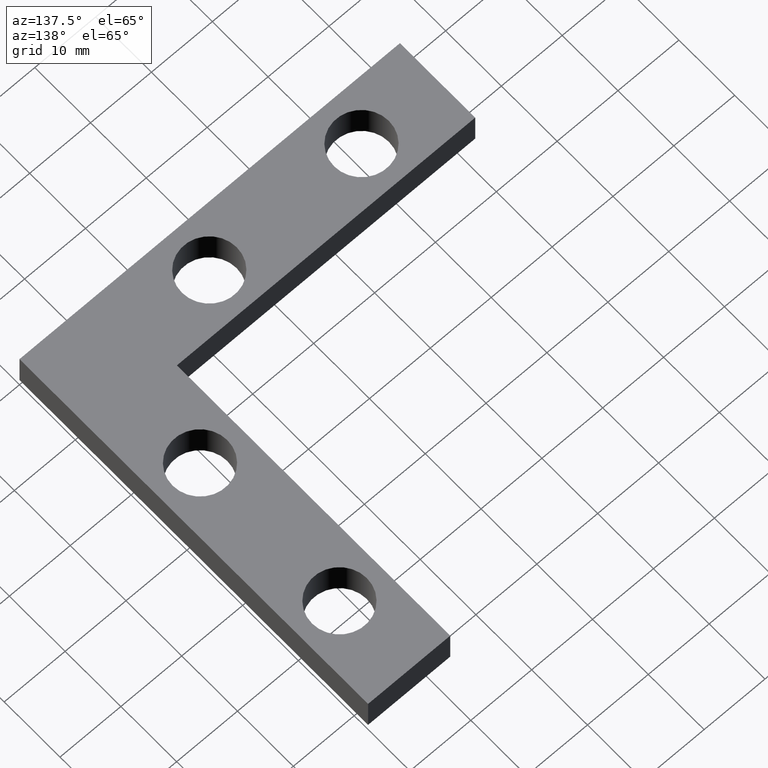
[diagram: clean part render]
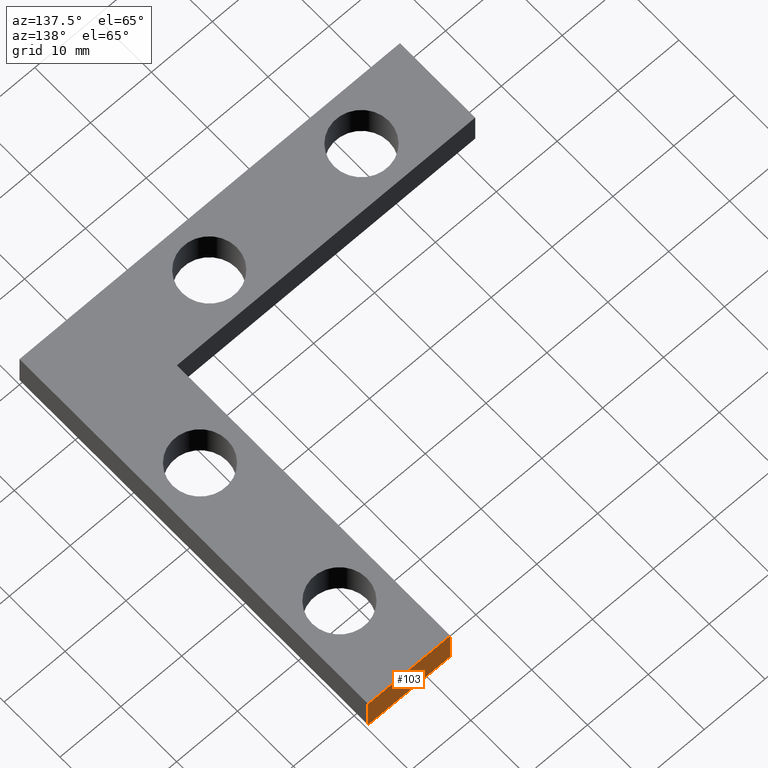
[diagram: same view with one face highlighted and labeled with its STEP entity id]
A machine part, auxiliary view. The second image highlights one B-rep face of the part: STEP entity #103.
In plain terms, the highlighted planar face has unit normal (0, -1, 0).
Its self-contained STEP definition (entity closure, byte-faithful):
#48=CARTESIAN_POINT('',(0.0,62.499999999750344,0.0));
#49=VERTEX_POINT('',#48);
#56=CARTESIAN_POINT('',(0.0,62.499999999750344,6.0));
#57=VERTEX_POINT('',#56);
#58=CARTESIAN_POINT('',(0.0,62.499999999750344,6.0));
#59=DIRECTION('',(0.0,0.0,-1.0));
#60=VECTOR('',#59,6.0);
#61=LINE('',#58,#60);
#62=EDGE_CURVE('',#57,#49,#61,.T.);
#73=CARTESIAN_POINT('',(0.0,62.499999999750344,6.0));
#74=DIRECTION('',(0.0,-1.0,0.0));
#75=DIRECTION('',(-1.0,0.0,0.0));
#76=AXIS2_PLACEMENT_3D('',#73,#74,#75);
#77=PLANE('',#76);
#78=ORIENTED_EDGE('',*,*,#62,.T.);
#79=CARTESIAN_POINT('',(-13.499999999945885,62.499999999750344,0.0));
#80=VERTEX_POINT('',#79);
#81=CARTESIAN_POINT('',(0.0,62.499999999750344,0.0));
#82=DIRECTION('',(-1.0,0.0,0.0));
#83=VECTOR('',#82,13.499999999945885);
#84=LINE('',#81,#83);
#85=EDGE_CURVE('',#49,#80,#84,.T.);
#86=ORIENTED_EDGE('',*,*,#85,.T.);
#87=CARTESIAN_POINT('',(-13.499999999945885,62.499999999750344,6.0));
#88=VERTEX_POINT('',#87);
#89=CARTESIAN_POINT('',(-13.499999999945885,62.499999999750344,6.0));
#90=DIRECTION('',(0.0,0.0,-1.0));
#91=VECTOR('',#90,6.0);
#92=LINE('',#89,#91);
#93=EDGE_CURVE('',#88,#80,#92,.T.);
#94=ORIENTED_EDGE('',*,*,#93,.F.);
#95=CARTESIAN_POINT('',(0.0,62.499999999750344,6.0));
#96=DIRECTION('',(-1.0,0.0,0.0));
#97=VECTOR('',#96,13.499999999945885);
#98=LINE('',#95,#97);
#99=EDGE_CURVE('',#57,#88,#98,.T.);
#100=ORIENTED_EDGE('',*,*,#99,.F.);
#101=EDGE_LOOP('',(#78,#86,#94,#100));
#102=FACE_OUTER_BOUND('',#101,.T.);
#103=ADVANCED_FACE('',(#102),#77,.F.);